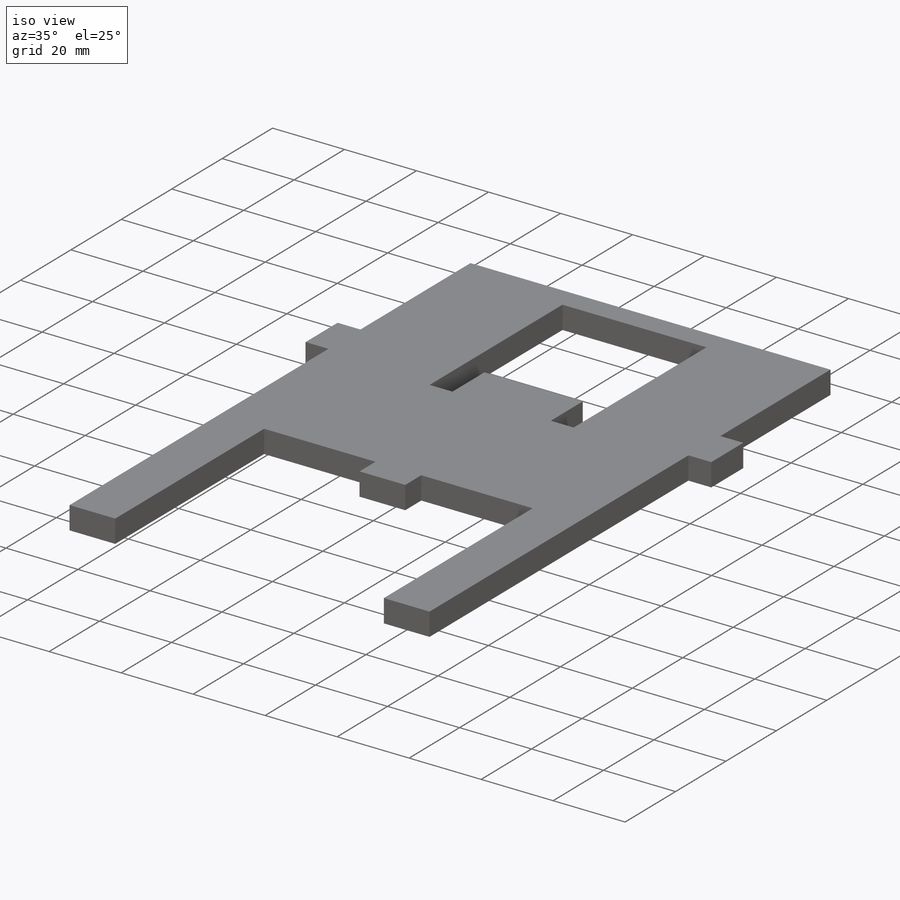
[diagram: iso view]
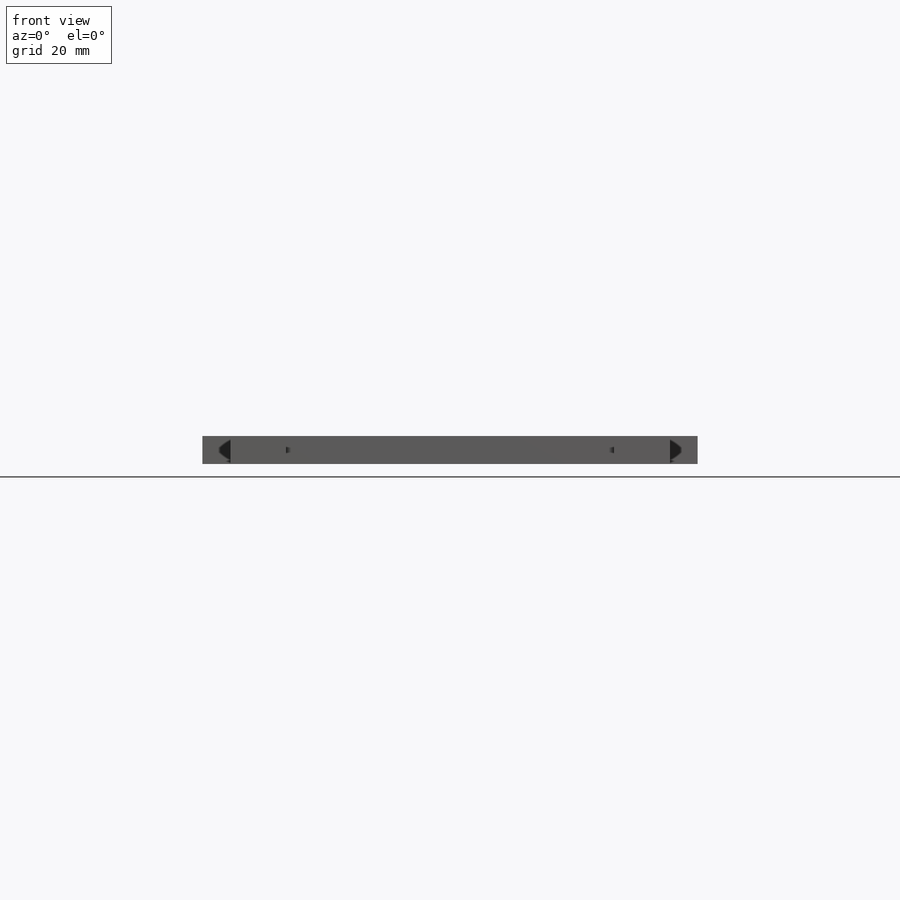
[diagram: front view]
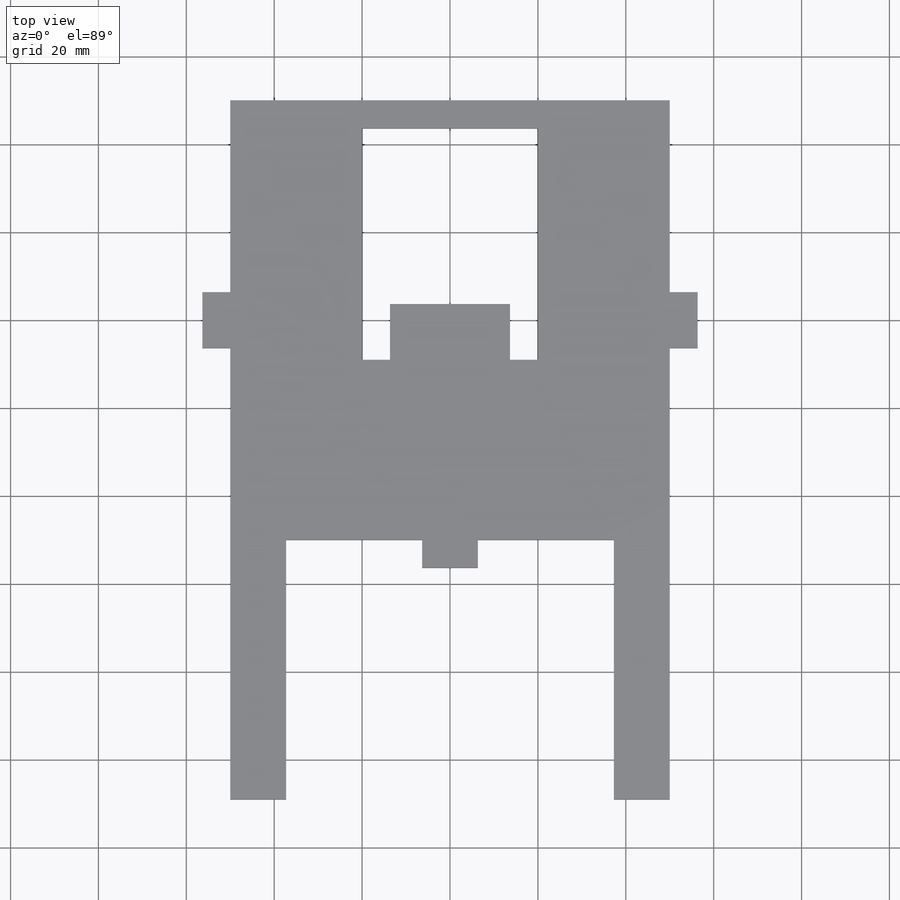
[diagram: top view]
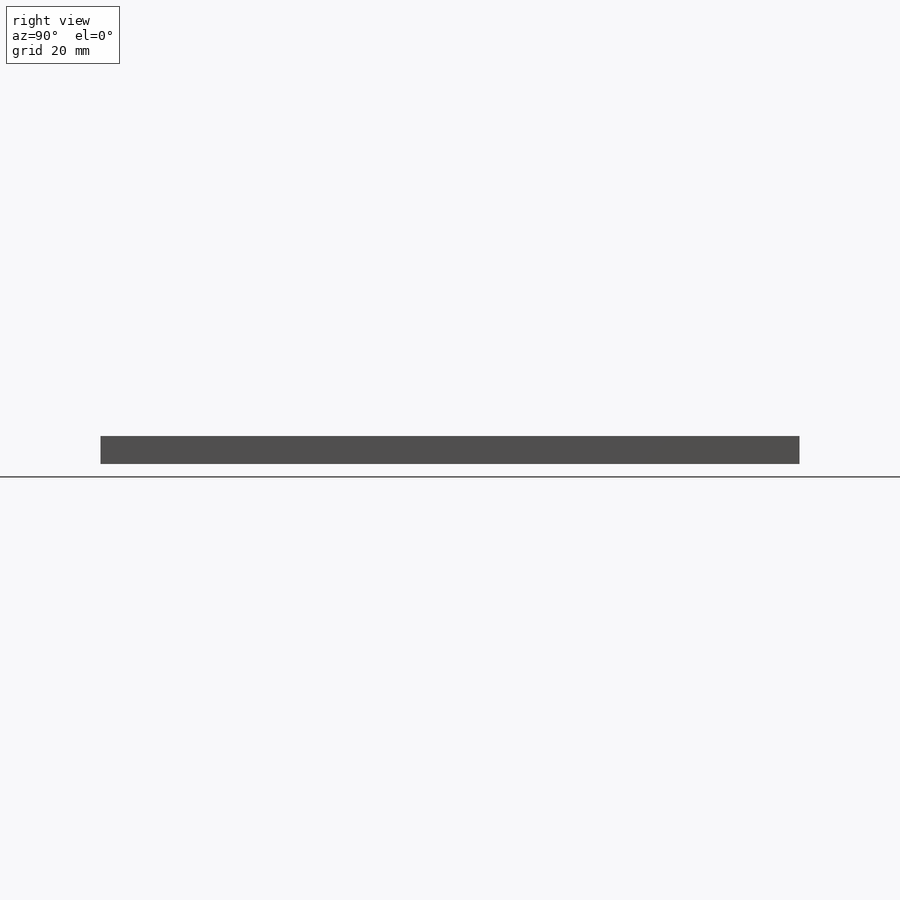
[diagram: right view]
SOLIDWORKS PART (.sldprt)
format: sldprt  version: not decoded by parser v0  size: 282,624 bytes
history: native  units: mm
features: sketch x6, extrude x3, mirror x2, cut_extrude x2, material x1, pattern_circular x1, plane x1 (+13 scaffold rows collapsed)
feature tree (29):
  scaffold x13  (default folders/planes/origin — collapsed)
  material  "Acrylic (Medium-high impact)"
  sketch  "Sketch1"  dims[D1=100.0mm D2=100.0mm]
  extrude  "Boss-Extrude1"  Depth=6.35mm
  sketch  "Sketch2"  dims[D1=3.175mm D2=6.35mm D3=12.7mm D4=50.0mm]
  extrude  "Boss-Extrude2"  Depth=6.35mm
  pattern_circular  "CirPattern1"  Count=3 Angle=90deg
  sketch  "Sketch3"  dims[D1=100.0mm D2=100.0mm]
  sketch  "Sketch4"  dims[c1.D1=6.35mm c1.D2=~5.635076mm c2.D1=12.7mm]
  extrude  "Boss-Extrude3"  Depth=59.05mm
  plane  "Plane1"
  mirror  "Mirror1"
  sketch  "Sketch5"  dims[c1.D1=~10.723869mm c1.D2=~10.354835mm c2.D1=40.0mm c2.D2=40.0mm c2.D3=50.0mm c2.D4=6.35mm]
  cut_extrude  "Cut-Extrude1"  [1 undecoded]
  sketch  "Sketch6"  dims[c1.D1=~11.917118mm c1.D2=~6.966085mm c2.D1=6.35mm c2.D2=12.7mm]
  cut_extrude  "Cut-Extrude2"  [1 undecoded]
  mirror  "Mirror2"
decode coverage: 10 of 14 modeling features carry decoded parameters
note: ~ marks probable driven/reference dimensions
note: 2 parameter values undecoded
note: suppression state not decoded; provenance and decode notes live in map.json
